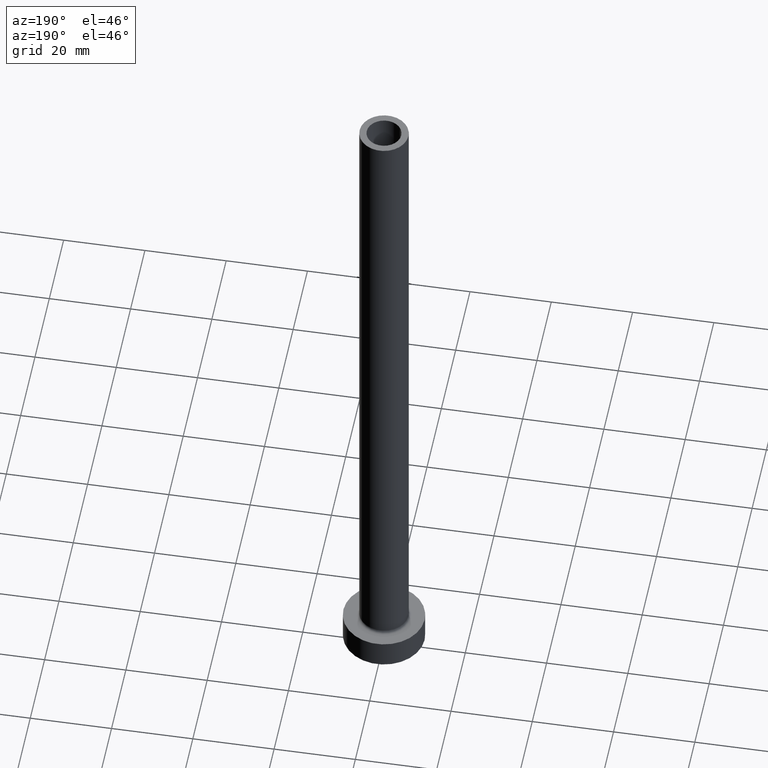
[diagram: clean part render]
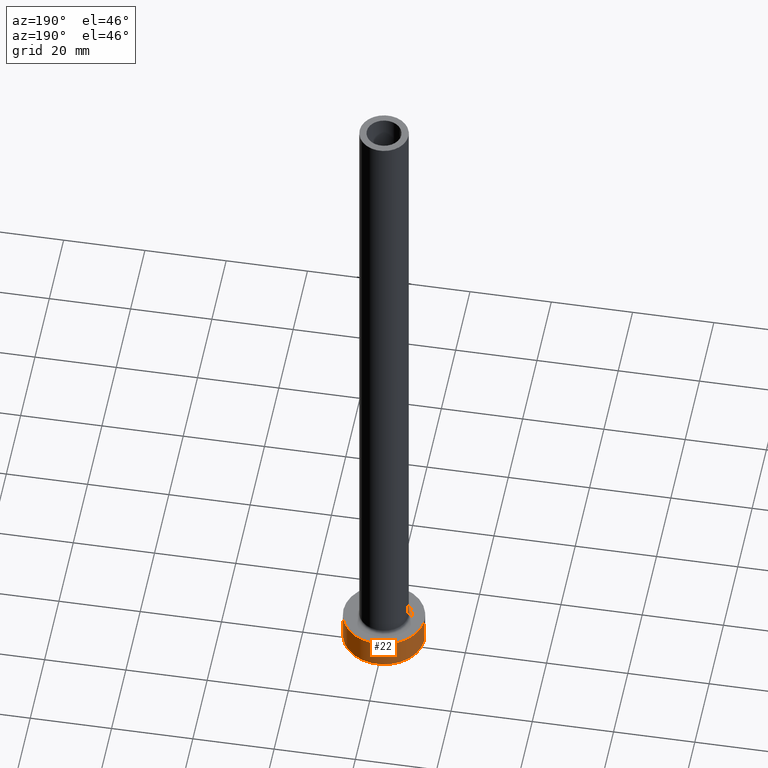
[diagram: same view with one face highlighted and labeled with its STEP entity id]
A machine part, auxiliary view. The second image highlights one B-rep face of the part: STEP entity #22.
In plain terms, the highlighted cylindrical surface (partial cylindrical patch) has radius 10 mm, axis along (-0, -0, -1).
Its self-contained STEP definition (entity closure, byte-faithful):
#10 = CARTESIAN_POINT ( 'NONE',  ( 10.00000000000000000, 1.224646799147353256E-15, 7.000000000000000000 ) ) ;
#19 = ORIENTED_EDGE ( 'NONE', *, *, #396, .F. ) ;
#22 = ADVANCED_FACE ( 'NONE', ( #246 ), #68, .T. ) ;
#48 = AXIS2_PLACEMENT_3D ( 'NONE', #225, #227, #326 ) ;
#68 = CYLINDRICAL_SURFACE ( 'NONE', #408, 10.00000000000000000 ) ;
#74 = CARTESIAN_POINT ( 'NONE',  ( -10.00000000000000000, 0.000000000000000000, 0.000000000000000000 ) ) ;
#79 = DIRECTION ( 'NONE',  ( 0.000000000000000000, 0.000000000000000000, 1.000000000000000000 ) ) ;
#81 = CARTESIAN_POINT ( 'NONE',  ( -10.00000000000000000, 0.000000000000000000, 7.000000000000000000 ) ) ;
#89 = ORIENTED_EDGE ( 'NONE', *, *, #390, .F. ) ;
#95 = VERTEX_POINT ( 'NONE', #81 ) ;
#116 = EDGE_CURVE ( 'NONE', #120, #372, #215, .T. ) ;
#120 = VERTEX_POINT ( 'NONE', #401 ) ;
#128 = CARTESIAN_POINT ( 'NONE',  ( 10.00000000000000000, 1.224646799147353256E-15, 7.000000000000000000 ) ) ;
#134 = ORIENTED_EDGE ( 'NONE', *, *, #116, .T. ) ;
#145 = LINE ( 'NONE', #218, #239 ) ;
#170 = VERTEX_POINT ( 'NONE', #10 ) ;
#188 = VECTOR ( 'NONE', #274, 1000.000000000000000 ) ;
#214 = DIRECTION ( 'NONE',  ( -1.000000000000000000, 0.000000000000000000, 0.000000000000000000 ) ) ;
#215 = CIRCLE ( 'NONE', #48, 10.00000000000000000 ) ;
#218 = CARTESIAN_POINT ( 'NONE',  ( -10.00000000000000000, 0.000000000000000000, 7.000000000000000000 ) ) ;
#225 = CARTESIAN_POINT ( 'NONE',  ( 0.000000000000000000, 0.000000000000000000, 0.000000000000000000 ) ) ;
#227 = DIRECTION ( 'NONE',  ( 0.000000000000000000, 0.000000000000000000, 1.000000000000000000 ) ) ;
#239 = VECTOR ( 'NONE', #365, 1000.000000000000000 ) ;
#241 = EDGE_LOOP ( 'NONE', ( #19, #445, #134, #89 ) ) ;
#246 = FACE_OUTER_BOUND ( 'NONE', #241, .T. ) ;
#247 = EDGE_CURVE ( 'NONE', #170, #120, #449, .T. ) ;
#250 = CARTESIAN_POINT ( 'NONE',  ( 0.000000000000000000, 0.000000000000000000, 7.000000000000000000 ) ) ;
#251 = CARTESIAN_POINT ( 'NONE',  ( 0.000000000000000000, 0.000000000000000000, 7.000000000000000000 ) ) ;
#274 = DIRECTION ( 'NONE',  ( -0.000000000000000000, -0.000000000000000000, -1.000000000000000000 ) ) ;
#326 = DIRECTION ( 'NONE',  ( 1.000000000000000000, 0.000000000000000000, 0.000000000000000000 ) ) ;
#362 = DIRECTION ( 'NONE',  ( 1.000000000000000000, 0.000000000000000000, 0.000000000000000000 ) ) ;
#365 = DIRECTION ( 'NONE',  ( -0.000000000000000000, -0.000000000000000000, -1.000000000000000000 ) ) ;
#372 = VERTEX_POINT ( 'NONE', #74 ) ;
#390 = EDGE_CURVE ( 'NONE', #95, #372, #145, .T. ) ;
#391 = AXIS2_PLACEMENT_3D ( 'NONE', #251, #79, #362 ) ;
#396 = EDGE_CURVE ( 'NONE', #170, #95, #424, .T. ) ;
#401 = CARTESIAN_POINT ( 'NONE',  ( 10.00000000000000000, 1.224646799147353256E-15, 0.000000000000000000 ) ) ;
#408 = AXIS2_PLACEMENT_3D ( 'NONE', #250, #413, #214 ) ;
#413 = DIRECTION ( 'NONE',  ( -0.000000000000000000, -0.000000000000000000, -1.000000000000000000 ) ) ;
#424 = CIRCLE ( 'NONE', #391, 10.00000000000000000 ) ;
#445 = ORIENTED_EDGE ( 'NONE', *, *, #247, .T. ) ;
#449 = LINE ( 'NONE', #128, #188 ) ;